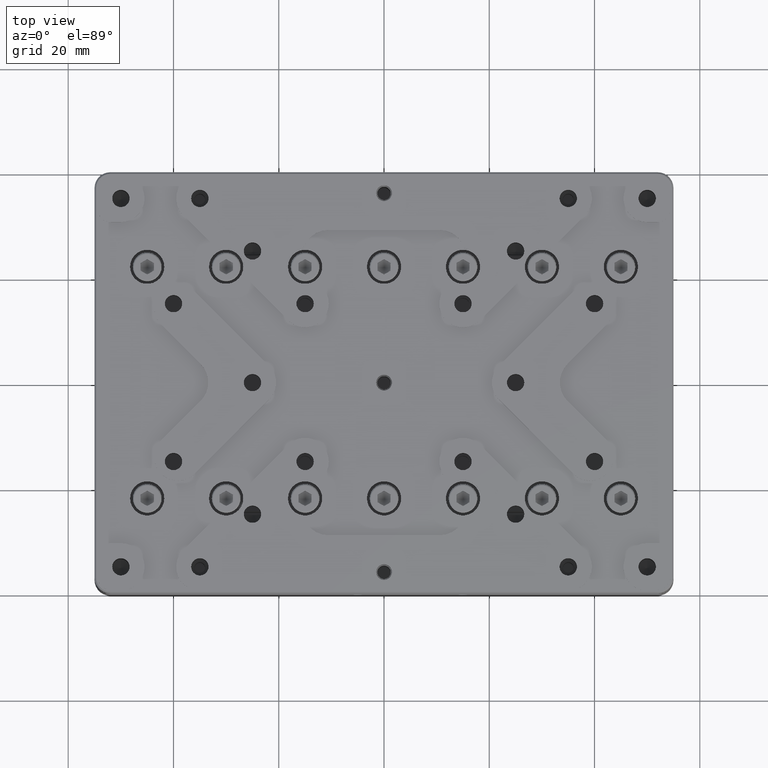
[diagram: clean part render]
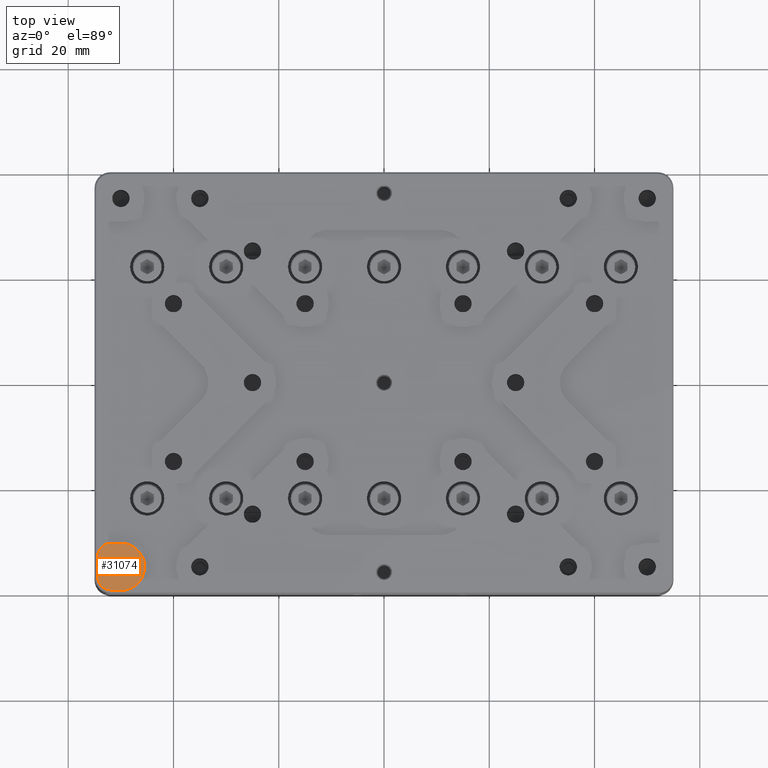
[diagram: same view with one face highlighted and labeled with its STEP entity id]
A machine part, top view. The second image highlights one B-rep face of the part: STEP entity #31074.
In plain terms, the highlighted planar face has unit normal (0, 0, 1).
Its self-contained STEP definition (entity closure, byte-faithful):
#70 = PLANE ( 'NONE',  #10538 ) ;
#829 = CARTESIAN_POINT ( 'NONE',  ( -54.39999999999999858, -33.00000000000000000, 13.50000000000000000 ) ) ;
#1126 = EDGE_CURVE ( 'NONE', #20476, #24924, #12574, .T. ) ;
#1470 = LINE ( 'NONE', #23322, #28823 ) ;
#1474 = ORIENTED_EDGE ( 'NONE', *, *, #1826, .F. ) ;
#1826 = EDGE_CURVE ( 'NONE', #20476, #4650, #18723, .T. ) ;
#2048 = FACE_BOUND ( 'NONE', #14984, .T. ) ;
#2135 = CARTESIAN_POINT ( 'NONE',  ( -45.50000000000000000, -35.00000000000000000, 13.50000000000000000 ) ) ;
#2238 = ORIENTED_EDGE ( 'NONE', *, *, #7679, .T. ) ;
#2302 = DIRECTION ( 'NONE',  ( 1.000000000000000000, 0.000000000000000000, 0.000000000000000000 ) ) ;
#3059 = CIRCLE ( 'NONE', #27084, 1.649999999999998579 ) ;
#3134 = DIRECTION ( 'NONE',  ( 1.000000000000000000, 0.000000000000000000, 0.000000000000000000 ) ) ;
#3147 = CARTESIAN_POINT ( 'NONE',  ( -50.00000000000000000, -35.00000000000000000, 13.50000000000000000 ) ) ;
#4222 = EDGE_CURVE ( 'NONE', #4650, #17513, #13807, .T. ) ;
#4650 = VERTEX_POINT ( 'NONE', #2135 ) ;
#4916 = DIRECTION ( 'NONE',  ( 0.000000000000000000, 0.000000000000000000, -1.000000000000000000 ) ) ;
#5869 = DIRECTION ( 'NONE',  ( 0.000000000000000000, 0.000000000000000000, -1.000000000000000000 ) ) ;
#6110 = ORIENTED_EDGE ( 'NONE', *, *, #1126, .T. ) ;
#6487 = DIRECTION ( 'NONE',  ( -1.000000000000000000, 0.000000000000000000, 0.000000000000000000 ) ) ;
#6644 = CARTESIAN_POINT ( 'NONE',  ( -54.39999999999999858, -39.39999999999999858, 13.50000000000000000 ) ) ;
#6890 = EDGE_CURVE ( 'NONE', #16298, #17513, #1470, .T. ) ;
#7385 = DIRECTION ( 'NONE',  ( 1.000000000000000000, 0.000000000000000000, 0.000000000000000000 ) ) ;
#7679 = EDGE_CURVE ( 'NONE', #22186, #10819, #3059, .T. ) ;
#8269 = VECTOR ( 'NONE', #14878, 1000.000000000000000 ) ;
#8787 = CIRCLE ( 'NONE', #19078, 2.500000000000002220 ) ;
#8850 = CARTESIAN_POINT ( 'NONE',  ( -48.34999999999999432, -35.00000000000000000, 13.50000000000000000 ) ) ;
#9724 = CARTESIAN_POINT ( 'NONE',  ( -50.00000000000000000, -35.00000000000000000, 13.50000000000000000 ) ) ;
#10094 = CARTESIAN_POINT ( 'NONE',  ( -51.89999999999999858, -30.50000000000000000, 13.50000000000000000 ) ) ;
#10296 = FACE_OUTER_BOUND ( 'NONE', #21253, .T. ) ;
#10538 = AXIS2_PLACEMENT_3D ( 'NONE', #31958, #10823, #24070 ) ;
#10690 = AXIS2_PLACEMENT_3D ( 'NONE', #30033, #35411, #2302 ) ;
#10819 = VERTEX_POINT ( 'NONE', #20845 ) ;
#10823 = DIRECTION ( 'NONE',  ( 0.000000000000000000, 0.000000000000000000, 1.000000000000000000 ) ) ;
#11562 = DIRECTION ( 'NONE',  ( 1.000000000000000000, 0.000000000000000000, 0.000000000000000000 ) ) ;
#11593 = CARTESIAN_POINT ( 'NONE',  ( -50.00000000000000000, -35.00000000000000000, 13.50000000000000000 ) ) ;
#12399 = VECTOR ( 'NONE', #6487, 1000.000000000000000 ) ;
#12574 = LINE ( 'NONE', #17412, #12399 ) ;
#12650 = ORIENTED_EDGE ( 'NONE', *, *, #13077, .T. ) ;
#12807 = DIRECTION ( 'NONE',  ( 1.000000000000000000, 0.000000000000000000, 0.000000000000000000 ) ) ;
#13049 = ORIENTED_EDGE ( 'NONE', *, *, #15211, .T. ) ;
#13057 = CIRCLE ( 'NONE', #24495, 1.649999999999998579 ) ;
#13077 = EDGE_CURVE ( 'NONE', #10819, #22186, #13057, .T. ) ;
#13807 = CIRCLE ( 'NONE', #14954, 4.499999999999997335 ) ;
#14878 = DIRECTION ( 'NONE',  ( 0.000000000000000000, -1.000000000000000000, 0.000000000000000000 ) ) ;
#14954 = AXIS2_PLACEMENT_3D ( 'NONE', #9724, #20810, #7385 ) ;
#14984 = EDGE_LOOP ( 'NONE', ( #2238, #12650 ) ) ;
#15211 = EDGE_CURVE ( 'NONE', #22983, #27206, #23100, .T. ) ;
#15532 = ORIENTED_EDGE ( 'NONE', *, *, #34841, .F. ) ;
#16298 = VERTEX_POINT ( 'NONE', #33015 ) ;
#16795 = DIRECTION ( 'NONE',  ( 1.000000000000000000, 0.000000000000000000, 0.000000000000000000 ) ) ;
#17412 = CARTESIAN_POINT ( 'NONE',  ( -51.89999999999999858, -30.50000000000000000, 13.50000000000000000 ) ) ;
#17513 = VERTEX_POINT ( 'NONE', #21702 ) ;
#18723 = CIRCLE ( 'NONE', #29578, 4.499999999999997335 ) ;
#18816 = CARTESIAN_POINT ( 'NONE',  ( -54.39999999999999858, -36.90000000000000568, 13.50000000000000000 ) ) ;
#19078 = AXIS2_PLACEMENT_3D ( 'NONE', #33029, #27664, #3134 ) ;
#20444 = CARTESIAN_POINT ( 'NONE',  ( -50.00000000000000000, -30.50000000000000000, 13.50000000000000000 ) ) ;
#20476 = VERTEX_POINT ( 'NONE', #20444 ) ;
#20638 = DIRECTION ( 'NONE',  ( 1.000000000000000000, 0.000000000000000000, 0.000000000000000000 ) ) ;
#20810 = DIRECTION ( 'NONE',  ( 0.000000000000000000, 0.000000000000000000, -1.000000000000000000 ) ) ;
#20845 = CARTESIAN_POINT ( 'NONE',  ( -51.64999999999999858, -35.00000000000000000, 13.50000000000000000 ) ) ;
#21253 = EDGE_LOOP ( 'NONE', ( #27387, #13049, #15532, #33201, #26554, #1474, #6110 ) ) ;
#21702 = CARTESIAN_POINT ( 'NONE',  ( -49.05660188679220113, -39.39999999999999858, 13.50000000000000000 ) ) ;
#22186 = VERTEX_POINT ( 'NONE', #8850 ) ;
#22309 = DIRECTION ( 'NONE',  ( 0.000000000000000000, 0.000000000000000000, -1.000000000000000000 ) ) ;
#22983 = VERTEX_POINT ( 'NONE', #829 ) ;
#23100 = LINE ( 'NONE', #6644, #8269 ) ;
#23322 = CARTESIAN_POINT ( 'NONE',  ( 54.39999999999999858, -39.39999999999999858, 13.50000000000000000 ) ) ;
#24070 = DIRECTION ( 'NONE',  ( 1.000000000000000000, 0.000000000000000000, 0.000000000000000000 ) ) ;
#24495 = AXIS2_PLACEMENT_3D ( 'NONE', #3147, #22309, #11562 ) ;
#24924 = VERTEX_POINT ( 'NONE', #10094 ) ;
#26136 = CIRCLE ( 'NONE', #10690, 2.500000000000002220 ) ;
#26554 = ORIENTED_EDGE ( 'NONE', *, *, #4222, .F. ) ;
#27084 = AXIS2_PLACEMENT_3D ( 'NONE', #29093, #4916, #12807 ) ;
#27206 = VERTEX_POINT ( 'NONE', #18816 ) ;
#27387 = ORIENTED_EDGE ( 'NONE', *, *, #29149, .F. ) ;
#27664 = DIRECTION ( 'NONE',  ( 0.000000000000000000, 0.000000000000000000, -1.000000000000000000 ) ) ;
#28823 = VECTOR ( 'NONE', #20638, 1000.000000000000000 ) ;
#29093 = CARTESIAN_POINT ( 'NONE',  ( -50.00000000000000000, -35.00000000000000000, 13.50000000000000000 ) ) ;
#29149 = EDGE_CURVE ( 'NONE', #22983, #24924, #8787, .T. ) ;
#29578 = AXIS2_PLACEMENT_3D ( 'NONE', #11593, #5869, #16795 ) ;
#30033 = CARTESIAN_POINT ( 'NONE',  ( -51.89999999999999858, -36.90000000000000568, 13.50000000000000000 ) ) ;
#31074 = ADVANCED_FACE ( 'NONE', ( #10296, #2048 ), #70, .T. ) ;
#31958 = CARTESIAN_POINT ( 'NONE',  ( -55.00000000000000000, 40.00000000000000000, 13.50000000000000000 ) ) ;
#33015 = CARTESIAN_POINT ( 'NONE',  ( -51.89999999999999858, -39.39999999999999858, 13.50000000000000000 ) ) ;
#33029 = CARTESIAN_POINT ( 'NONE',  ( -51.89999999999999858, -33.00000000000000000, 13.50000000000000000 ) ) ;
#33201 = ORIENTED_EDGE ( 'NONE', *, *, #6890, .T. ) ;
#34841 = EDGE_CURVE ( 'NONE', #16298, #27206, #26136, .T. ) ;
#35411 = DIRECTION ( 'NONE',  ( 0.000000000000000000, 0.000000000000000000, -1.000000000000000000 ) ) ;